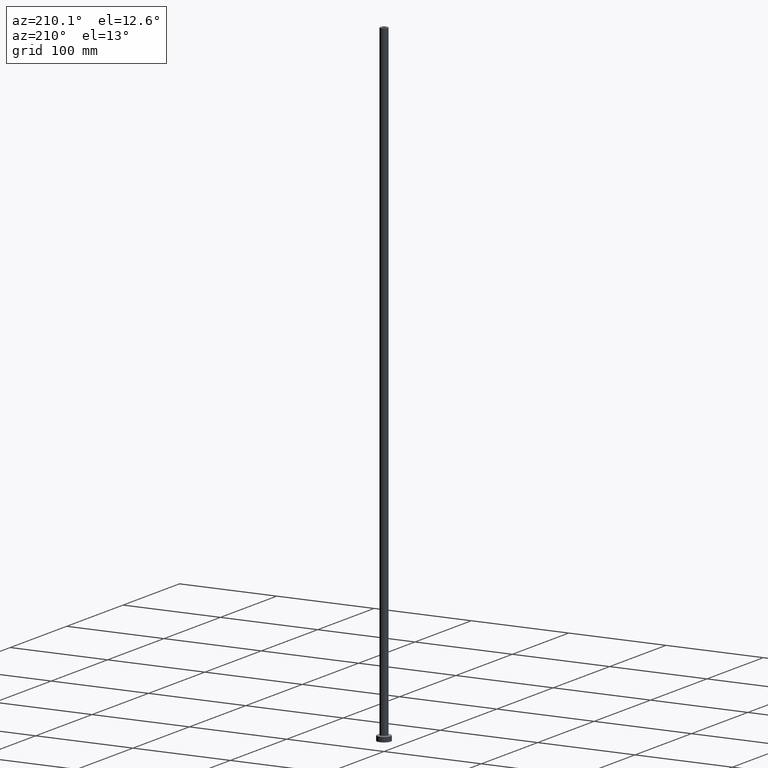
[diagram: clean part render]
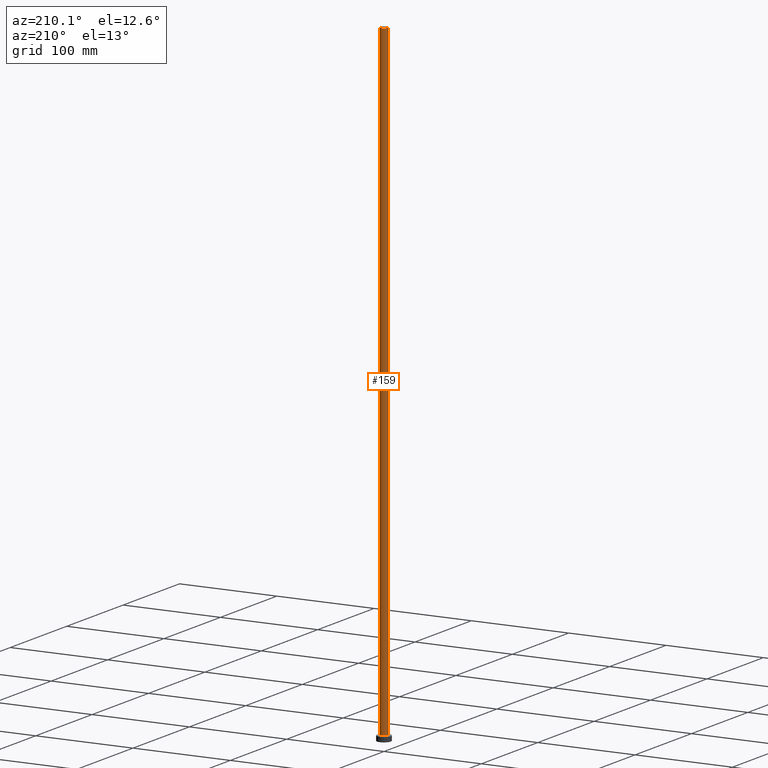
[diagram: same view with one face highlighted and labeled with its STEP entity id]
A machine part, auxiliary view. The second image highlights one B-rep face of the part: STEP entity #159.
In plain terms, the highlighted cylindrical surface (edge-blend (fillet) strip) has radius 4 mm, axis along (-0, -0, -1).
Its self-contained STEP definition (entity closure, byte-faithful):
#7 = CYLINDRICAL_SURFACE ( 'NONE', #40, 4.000000000000000000 ) ;
#20 = LINE ( 'NONE', #339, #244 ) ;
#40 = AXIS2_PLACEMENT_3D ( 'NONE', #246, #435, #108 ) ;
#56 = VECTOR ( 'NONE', #147, 1000.000000000000000 ) ;
#76 = DIRECTION ( 'NONE',  ( 0.000000000000000000, 0.000000000000000000, 1.000000000000000000 ) ) ;
#89 = CARTESIAN_POINT ( 'NONE',  ( -4.000000000000000000, 0.000000000000000000, 650.0000000000000000 ) ) ;
#108 = DIRECTION ( 'NONE',  ( -1.000000000000000000, 0.000000000000000000, 0.000000000000000000 ) ) ;
#109 = CARTESIAN_POINT ( 'NONE',  ( 4.000000000000000000, 4.898587196589411843E-16, 5.499999999999949374 ) ) ;
#114 = CARTESIAN_POINT ( 'NONE',  ( 0.000000000000000000, 0.000000000000000000, 650.0000000000000000 ) ) ;
#147 = DIRECTION ( 'NONE',  ( -0.000000000000000000, -0.000000000000000000, -1.000000000000000000 ) ) ;
#156 = CARTESIAN_POINT ( 'NONE',  ( 0.000000000000000000, 0.000000000000000000, 5.499999999999949374 ) ) ;
#159 = ADVANCED_FACE ( 'NONE', ( #432 ), #7, .T. ) ;
#166 = VERTEX_POINT ( 'NONE', #212 ) ;
#176 = EDGE_CURVE ( 'NONE', #177, #421, #179, .T. ) ;
#177 = VERTEX_POINT ( 'NONE', #396 ) ;
#179 = CIRCLE ( 'NONE', #268, 4.000000000000000000 ) ;
#212 = CARTESIAN_POINT ( 'NONE',  ( -4.000000000000000000, 0.000000000000000000, 5.499999999999949374 ) ) ;
#234 = DIRECTION ( 'NONE',  ( 0.000000000000000000, 0.000000000000000000, 1.000000000000000000 ) ) ;
#240 = EDGE_LOOP ( 'NONE', ( #450, #348, #375, #447 ) ) ;
#244 = VECTOR ( 'NONE', #296, 1000.000000000000000 ) ;
#246 = CARTESIAN_POINT ( 'NONE',  ( 0.000000000000000000, 0.000000000000000000, 650.0000000000000000 ) ) ;
#268 = AXIS2_PLACEMENT_3D ( 'NONE', #114, #76, #324 ) ;
#287 = EDGE_CURVE ( 'NONE', #421, #166, #398, .T. ) ;
#296 = DIRECTION ( 'NONE',  ( -0.000000000000000000, -0.000000000000000000, -1.000000000000000000 ) ) ;
#298 = VERTEX_POINT ( 'NONE', #109 ) ;
#324 = DIRECTION ( 'NONE',  ( 1.000000000000000000, 0.000000000000000000, 0.000000000000000000 ) ) ;
#339 = CARTESIAN_POINT ( 'NONE',  ( 4.000000000000000000, 4.898587196589411843E-16, 650.0000000000000000 ) ) ;
#348 = ORIENTED_EDGE ( 'NONE', *, *, #439, .T. ) ;
#353 = EDGE_CURVE ( 'NONE', #298, #166, #365, .T. ) ;
#365 = CIRCLE ( 'NONE', #399, 4.000000000000000000 ) ;
#375 = ORIENTED_EDGE ( 'NONE', *, *, #353, .T. ) ;
#395 = CARTESIAN_POINT ( 'NONE',  ( -4.000000000000000000, 0.000000000000000000, 650.0000000000000000 ) ) ;
#396 = CARTESIAN_POINT ( 'NONE',  ( 4.000000000000000000, 4.898587196589411843E-16, 650.0000000000000000 ) ) ;
#398 = LINE ( 'NONE', #395, #56 ) ;
#399 = AXIS2_PLACEMENT_3D ( 'NONE', #156, #234, #402 ) ;
#402 = DIRECTION ( 'NONE',  ( 1.000000000000000000, 0.000000000000000000, 0.000000000000000000 ) ) ;
#421 = VERTEX_POINT ( 'NONE', #89 ) ;
#432 = FACE_OUTER_BOUND ( 'NONE', #240, .T. ) ;
#435 = DIRECTION ( 'NONE',  ( -0.000000000000000000, -0.000000000000000000, -1.000000000000000000 ) ) ;
#439 = EDGE_CURVE ( 'NONE', #177, #298, #20, .T. ) ;
#447 = ORIENTED_EDGE ( 'NONE', *, *, #287, .F. ) ;
#450 = ORIENTED_EDGE ( 'NONE', *, *, #176, .F. ) ;